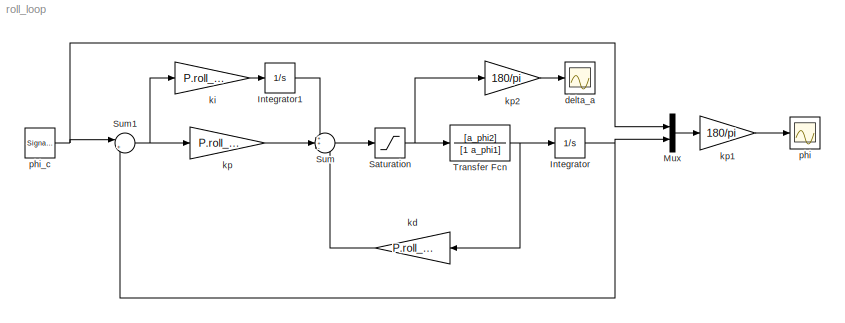
MODEL roll_loop
KIND model
BLOCK [Integrator] Integrator
  Ports = [1, 1]
  SID = 2
BLOCK [Integrator] Integrator1
  Ports = [1, 1]
  SID = 10
BLOCK [Mux] Mux
  DisplayOption = bar
  Inputs = 2
  Ports = [2, 1]
  SID = 12
BLOCK [Saturate] Saturation
  LowerLimit = -delta_a_max
  OutDataType = fixdt(1, 16)
  OutScaling = 2^0
  SID = 4
  UpperLimit = delta_a_max
BLOCK [Sum] Sum
  IconShape = round
  InputSameDT = off
  Inputs = ++-
  OutDataType = fixdt(1, 16)
  OutDataTypeMode = Inherit via internal rule
  OutDataTypeStr = Inherit: Inherit via internal rule
  OutScaling = 2^0
  Ports = [3, 1]
  SID = 5
  SaturateOnIntegerOverflow = off
BLOCK [Sum] Sum1
  IconShape = round
  InputSameDT = off
  Inputs = |+-
  OutDataType = fixdt(1, 16)
  OutDataTypeMode = Inherit via internal rule
  OutDataTypeStr = Inherit: Inherit via internal rule
  OutScaling = 2^0
  Ports = [2, 1]
  SID = 9
  SaturateOnIntegerOverflow = off
BLOCK [TransferFcn] Transfer Fcn
  Denominator = [1 a_phi1]
  Numerator = [a_phi2]
  SID = 1
BLOCK [Scope] delta_a
  DataFormat = StructureWithTime
  Floating = off
  NumInputPorts = 1
  Ports = [1]
  SID = 14
  SampleTime = 0
  SaveName = ScopeData1
  TimeRange = 30
  YMax = 100
  YMin = -100
BLOCK [Gain] kd
  Gain = P.roll_kd
  OutDataType = fixdt(1, 16)
  OutDataTypeMode = Inherit via internal rule
  OutDataTypeStr = Inherit: Inherit via internal rule
  OutScaling = 2^0
  ParamDataTypeStr = Inherit: Inherit via internal rule
  ParameterDataType = fixdt(1, 16)
  ParameterDataTypeMode = Inherit via internal rule
  ParameterScaling = 2^0
  SID = 6
  SaturateOnIntegerOverflow = off
BLOCK [Gain] ki
  Gain = P.roll_ki
  OutDataType = fixdt(1, 16)
  OutDataTypeMode = Inherit via internal rule
  OutDataTypeStr = Inherit: Inherit via internal rule
  OutScaling = 2^0
  ParamDataTypeStr = Inherit: Inherit via internal rule
  ParameterDataType = fixdt(1, 16)
  ParameterDataTypeMode = Inherit via internal rule
  ParameterScaling = 2^0
  SID = 7
  SaturateOnIntegerOverflow = off
BLOCK [Gain] kp
  Gain = P.roll_kp
  OutDataType = fixdt(1, 16)
  OutDataTypeMode = Inherit via internal rule
  OutDataTypeStr = Inherit: Inherit via internal rule
  OutScaling = 2^0
  ParamDataTypeStr = Inherit: Inherit via internal rule
  ParameterDataType = fixdt(1, 16)
  ParameterDataTypeMode = Inherit via internal rule
  ParameterScaling = 2^0
  SID = 8
  SaturateOnIntegerOverflow = off
BLOCK [Gain] kp1
  Gain = 180/pi
  OutDataType = fixdt(1, 16)
  OutDataTypeMode = Inherit via internal rule
  OutDataTypeStr = Inherit: Inherit via internal rule
  OutScaling = 2^0
  ParamDataTypeStr = Inherit: Inherit via internal rule
  ParameterDataType = fixdt(1, 16)
  ParameterDataTypeMode = Inherit via internal rule
  ParameterScaling = 2^0
  SID = 15
  SaturateOnIntegerOverflow = off
BLOCK [Gain] kp2
  Gain = 180/pi
  OutDataType = fixdt(1, 16)
  OutDataTypeMode = Inherit via internal rule
  OutDataTypeStr = Inherit: Inherit via internal rule
  OutScaling = 2^0
  ParamDataTypeStr = Inherit: Inherit via internal rule
  ParameterDataType = fixdt(1, 16)
  ParameterDataTypeMode = Inherit via internal rule
  ParameterScaling = 2^0
  SID = 16
  SaturateOnIntegerOverflow = off
BLOCK [Scope] phi
  DataFormat = StructureWithTime
  Floating = off
  NumInputPorts = 1
  Ports = [1]
  SID = 13
  SampleTime = 0
  TimeRange = 30
  YMax = 40
  YMin = -40
BLOCK [SignalGenerator] phi_c
  Amplitude = phi_max
  Frequency = .05
  Ports = [0, 1]
  SID = 11
  WaveForm = square
LINE Integrator1:1 -> Sum:1
NET Integrator:1 -> Mux:2, Sum1:2
LINE Mux:1 -> kp1:1
NET Saturation:1 -> Transfer Fcn:1, kp2:1
NET Sum1:1 -> ki:1, kp:1
LINE Sum:1 -> Saturation:1
NET Transfer Fcn:1 -> Integrator:1, kd:1
LINE kd:1 -> Sum:3
LINE ki:1 -> Integrator1:1
LINE kp1:1 -> phi:1
LINE kp2:1 -> delta_a:1
LINE kp:1 -> Sum:2
NET phi_c:1 -> Mux:1, Sum1:1
note: NET lines group one-source signal fan-out (src -> all destinations, sorted); 1:1 wires keep LINE
